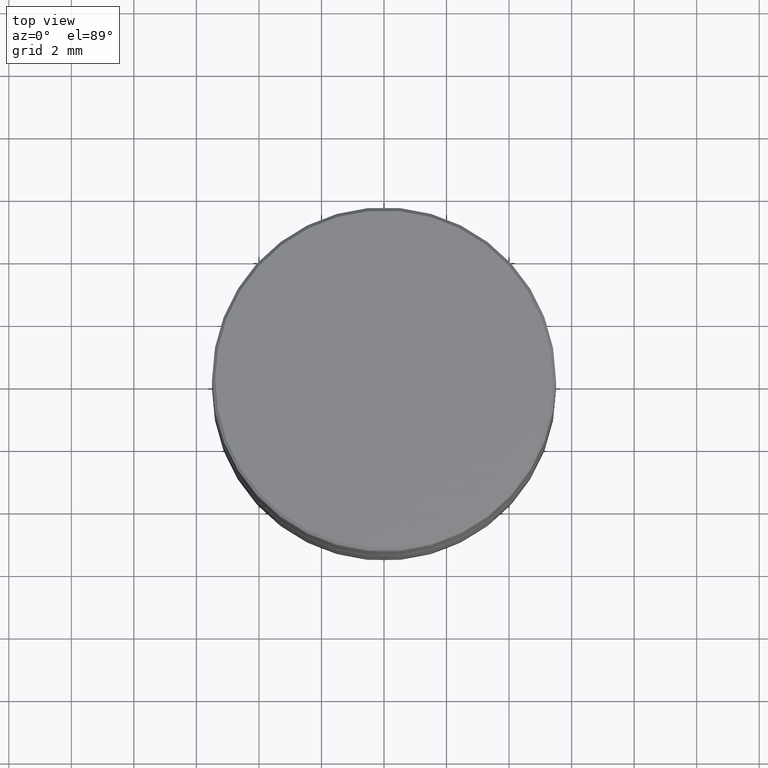
[diagram: clean part render]
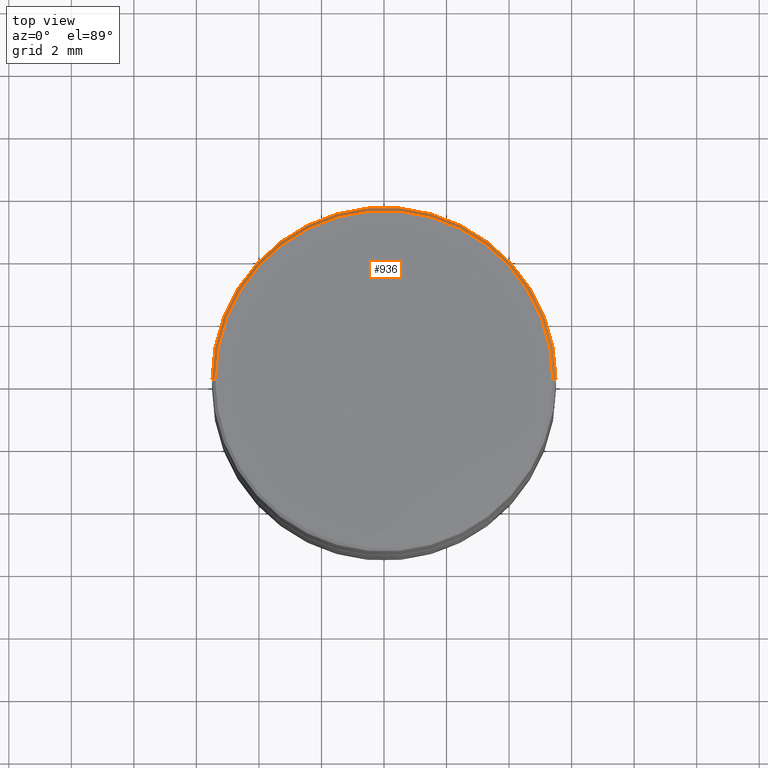
[diagram: same view with one face highlighted and labeled with its STEP entity id]
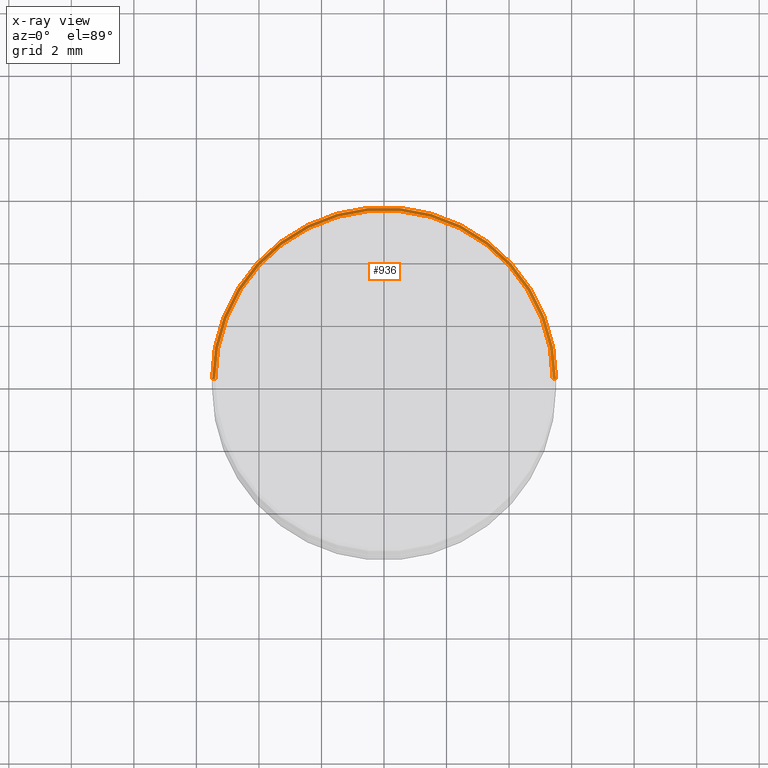
[diagram: x-ray of the same camera — body ghosted, the highlighted face saturated]
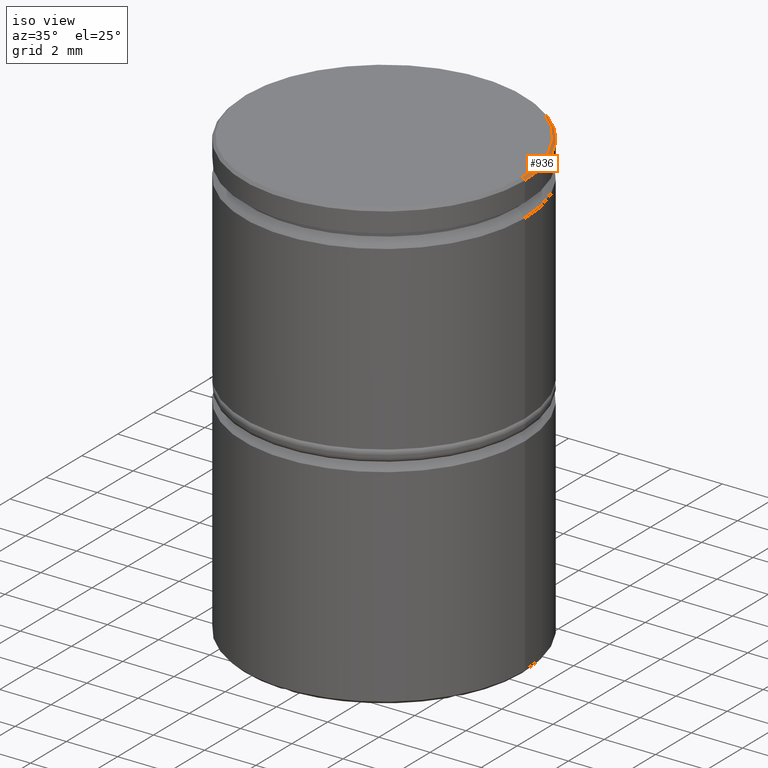
[diagram: same view with one face highlighted and labeled with its STEP entity id]
A machine part, top view. The second image highlights one B-rep face of the part: STEP entity #936.
The next image is the same camera in x-ray: the body ghosted, the highlighted face saturated — about 0% of this face is hidden behind the body in this view.
A second angle (iso view) of the same face is appended — the face is thin or edge-on in the first view.
In plain terms, the highlighted conical surface has half-angle 45 deg.
Its self-contained STEP definition (entity closure, byte-faithful):
#41 = AXIS2_PLACEMENT_3D ( 'NONE', #1371, #195, #616 ) ;
#48 = CARTESIAN_POINT ( 'NONE',  ( 0.000000000000000000, 0.000000000000000000, 0.000000000000000000 ) ) ;
#59 = DIRECTION ( 'NONE',  ( -0.7071067811865414665, 0.000000000000000000, -0.7071067811865536790 ) ) ;
#110 = EDGE_CURVE ( 'NONE', #297, #657, #263, .T. ) ;
#159 = DIRECTION ( 'NONE',  ( -1.000000000000000000, 0.000000000000000000, 0.000000000000000000 ) ) ;
#195 = DIRECTION ( 'NONE',  ( 0.000000000000000000, 0.000000000000000000, -1.000000000000000000 ) ) ;
#260 = CARTESIAN_POINT ( 'NONE',  ( 5.400000000000005684, 6.613092715395714369E-16, 0.000000000000000000 ) ) ;
#263 = CIRCLE ( 'NONE', #1220, 5.400000000000005684 ) ;
#277 = DIRECTION ( 'NONE',  ( 0.7071067811865414665, 8.659560562354857670E-17, -0.7071067811865536790 ) ) ;
#297 = VERTEX_POINT ( 'NONE', #761 ) ;
#322 = CARTESIAN_POINT ( 'NONE',  ( -5.400000000000005684, 0.000000000000000000, 0.000000000000000000 ) ) ;
#408 = ORIENTED_EDGE ( 'NONE', *, *, #534, .F. ) ;
#522 = CARTESIAN_POINT ( 'NONE',  ( -5.500000000000000000, 6.735557395310442023E-16, -0.09999999999999592548 ) ) ;
#534 = EDGE_CURVE ( 'NONE', #1170, #764, #1319, .T. ) ;
#547 = CONICAL_SURFACE ( 'NONE', #1001, 5.400000000000005684, 0.7853981633974396193 ) ;
#589 = ORIENTED_EDGE ( 'NONE', *, *, #1237, .F. ) ;
#616 = DIRECTION ( 'NONE',  ( 1.000000000000000000, 0.000000000000000000, 0.000000000000000000 ) ) ;
#657 = VERTEX_POINT ( 'NONE', #322 ) ;
#706 = DIRECTION ( 'NONE',  ( 0.000000000000000000, 0.000000000000000000, -1.000000000000000000 ) ) ;
#752 = CARTESIAN_POINT ( 'NONE',  ( 5.500000000000000000, 0.000000000000000000, -0.09999999999999592548 ) ) ;
#758 = ORIENTED_EDGE ( 'NONE', *, *, #882, .T. ) ;
#761 = CARTESIAN_POINT ( 'NONE',  ( 5.400000000000005684, 6.674325055353078196E-16, 0.000000000000000000 ) ) ;
#764 = VERTEX_POINT ( 'NONE', #752 ) ;
#800 = LINE ( 'NONE', #260, #1025 ) ;
#820 = CARTESIAN_POINT ( 'NONE',  ( 0.000000000000000000, 0.000000000000000000, 0.000000000000000000 ) ) ;
#882 = EDGE_CURVE ( 'NONE', #297, #764, #800, .T. ) ;
#919 = DIRECTION ( 'NONE',  ( -0.000000000000000000, -0.000000000000000000, 1.000000000000000000 ) ) ;
#922 = LINE ( 'NONE', #1038, #939 ) ;
#936 = ADVANCED_FACE ( 'NONE', ( #1215 ), #547, .T. ) ;
#939 = VECTOR ( 'NONE', #59, 1000.000000000000000 ) ;
#1001 = AXIS2_PLACEMENT_3D ( 'NONE', #48, #706, #159 ) ;
#1025 = VECTOR ( 'NONE', #277, 1000.000000000000000 ) ;
#1038 = CARTESIAN_POINT ( 'NONE',  ( -5.400000000000005684, 0.000000000000000000, 0.000000000000000000 ) ) ;
#1121 = EDGE_LOOP ( 'NONE', ( #1268, #758, #408, #589 ) ) ;
#1170 = VERTEX_POINT ( 'NONE', #522 ) ;
#1215 = FACE_OUTER_BOUND ( 'NONE', #1121, .T. ) ;
#1220 = AXIS2_PLACEMENT_3D ( 'NONE', #820, #919, #1352 ) ;
#1237 = EDGE_CURVE ( 'NONE', #657, #1170, #922, .T. ) ;
#1268 = ORIENTED_EDGE ( 'NONE', *, *, #110, .F. ) ;
#1319 = CIRCLE ( 'NONE', #41, 5.500000000000000000 ) ;
#1352 = DIRECTION ( 'NONE',  ( 1.000000000000000000, 0.000000000000000000, 0.000000000000000000 ) ) ;
#1371 = CARTESIAN_POINT ( 'NONE',  ( 0.000000000000000000, 0.000000000000000000, -0.09999999999999592548 ) ) ;